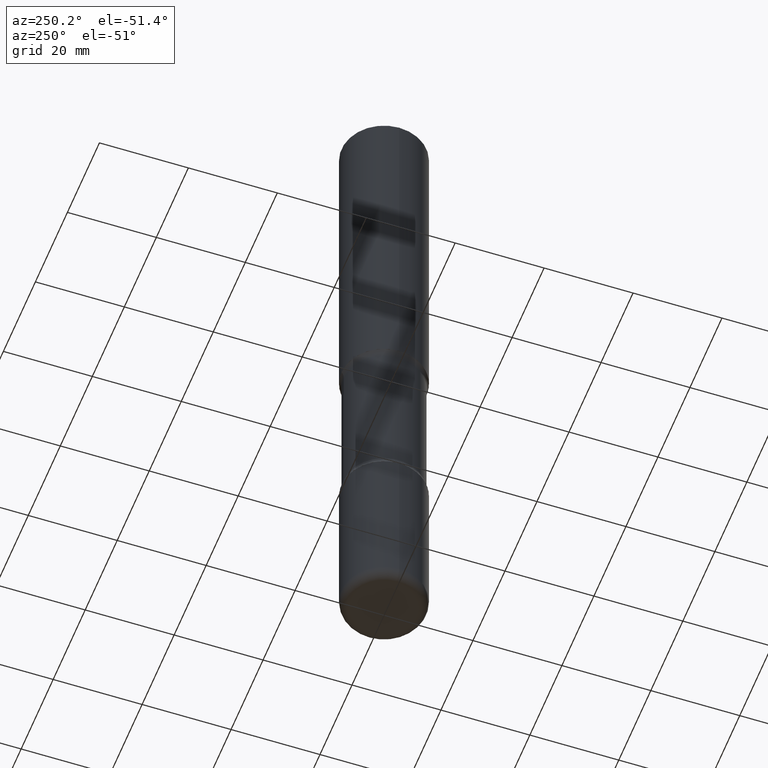
[diagram: clean part render]
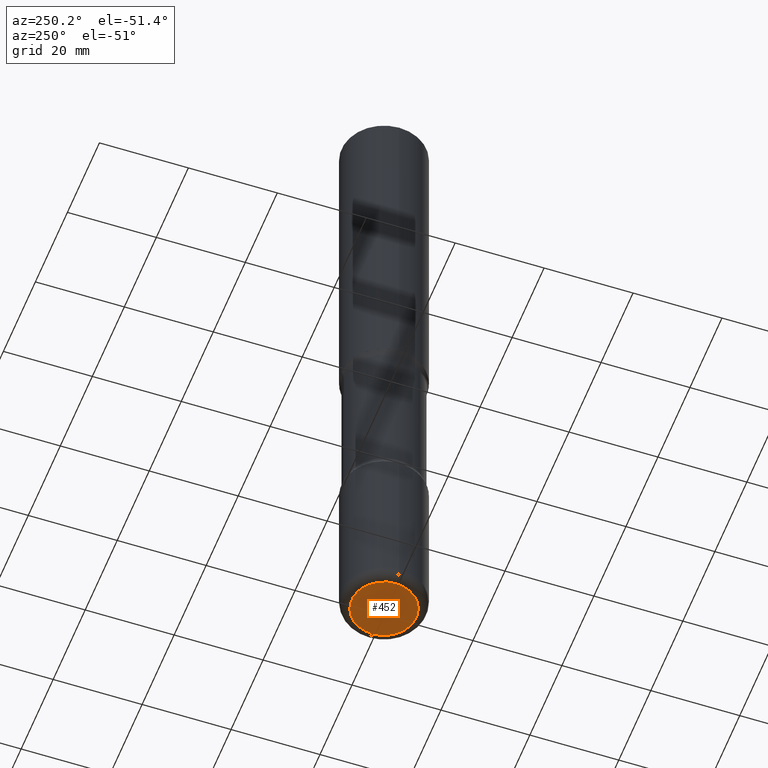
[diagram: same view with one face highlighted and labeled with its STEP entity id]
A machine part, auxiliary view. The second image highlights one B-rep face of the part: STEP entity #452.
In plain terms, the highlighted planar face has unit normal (0, -0, -1).
Its self-contained STEP definition (entity closure, byte-faithful):
#13 = DIRECTION ( 'NONE',  ( 2.438088387897960049E-29, -3.491481338843145188E-15, -1.000000000000000000 ) ) ;
#23 = CIRCLE ( 'NONE', #191, 0.2850000000000005307 ) ;
#26 = CIRCLE ( 'NONE', #192, 0.2850000000000005307 ) ;
#50 = DIRECTION ( 'NONE',  ( -1.000000000000000000, 6.982962677686265922E-15, -4.876176775795935793E-29 ) ) ;
#87 = EDGE_CURVE ( 'NONE', #216, #330, #26, .T. ) ;
#90 = CARTESIAN_POINT ( 'NONE',  ( -0.2850000000000005307, -1.844698034480258891E-14, -5.999999999999998224 ) ) ;
#142 = DIRECTION ( 'NONE',  ( 1.000000000000000000, -6.982962677686261189E-15, 0.000000000000000000 ) ) ;
#149 = DIRECTION ( 'NONE',  ( 1.000000000000000000, -6.982962677686261189E-15, 0.000000000000000000 ) ) ;
#191 = AXIS2_PLACEMENT_3D ( 'NONE', #315, #530, #142 ) ;
#192 = AXIS2_PLACEMENT_3D ( 'NONE', #455, #194, #149 ) ;
#194 = DIRECTION ( 'NONE',  ( -2.445468806185136597E-29, 3.491481338843145583E-15, 1.000000000000000000 ) ) ;
#216 = VERTEX_POINT ( 'NONE', #282 ) ;
#252 = ORIENTED_EDGE ( 'NONE', *, *, #516, .F. ) ;
#282 = CARTESIAN_POINT ( 'NONE',  ( 0.2850000000000005307, -2.293903239619945620E-14, -5.999999999999998224 ) ) ;
#315 = CARTESIAN_POINT ( 'NONE',  ( 1.467281283711081510E-28, -2.094888803305886640E-14, -5.999999999999998224 ) ) ;
#330 = VERTEX_POINT ( 'NONE', #90 ) ;
#345 = ORIENTED_EDGE ( 'NONE', *, *, #87, .F. ) ;
#360 = AXIS2_PLACEMENT_3D ( 'NONE', #481, #13, #50 ) ;
#387 = PLANE ( 'NONE',  #360 ) ;
#452 = ADVANCED_FACE ( 'NONE', ( #479 ), #387, .T. ) ;
#455 = CARTESIAN_POINT ( 'NONE',  ( 1.467281283711081510E-28, -2.094888803305886640E-14, -5.999999999999998224 ) ) ;
#479 = FACE_OUTER_BOUND ( 'NONE', #498, .T. ) ;
#481 = CARTESIAN_POINT ( 'NONE',  ( 3.073714343152734857E-28, 2.056147703061211536E-15, -5.999999999999999112 ) ) ;
#498 = EDGE_LOOP ( 'NONE', ( #345, #252 ) ) ;
#516 = EDGE_CURVE ( 'NONE', #330, #216, #23, .T. ) ;
#530 = DIRECTION ( 'NONE',  ( -2.445468806185136597E-29, 3.491481338843145583E-15, 1.000000000000000000 ) ) ;